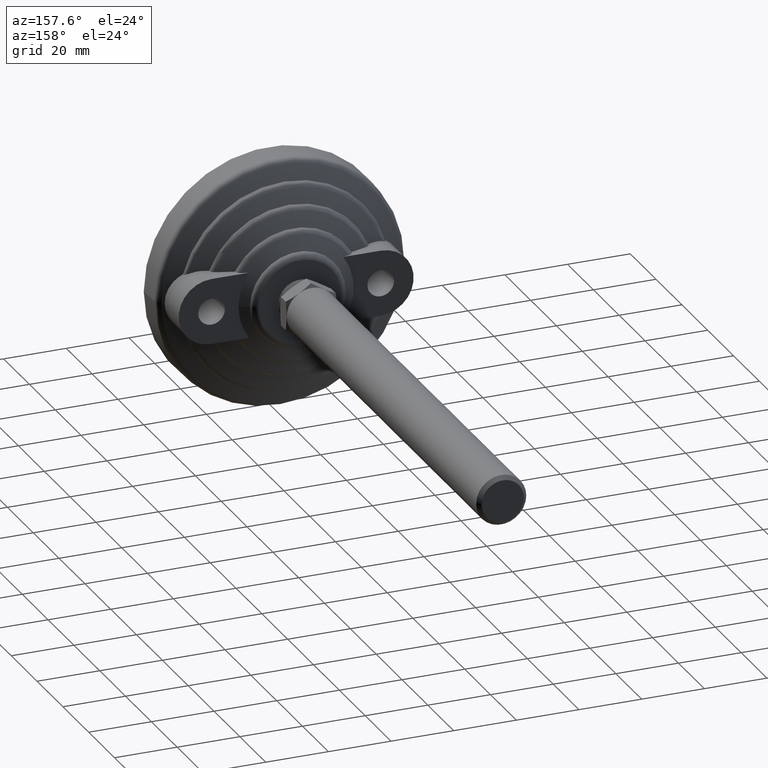
[diagram: clean part render]
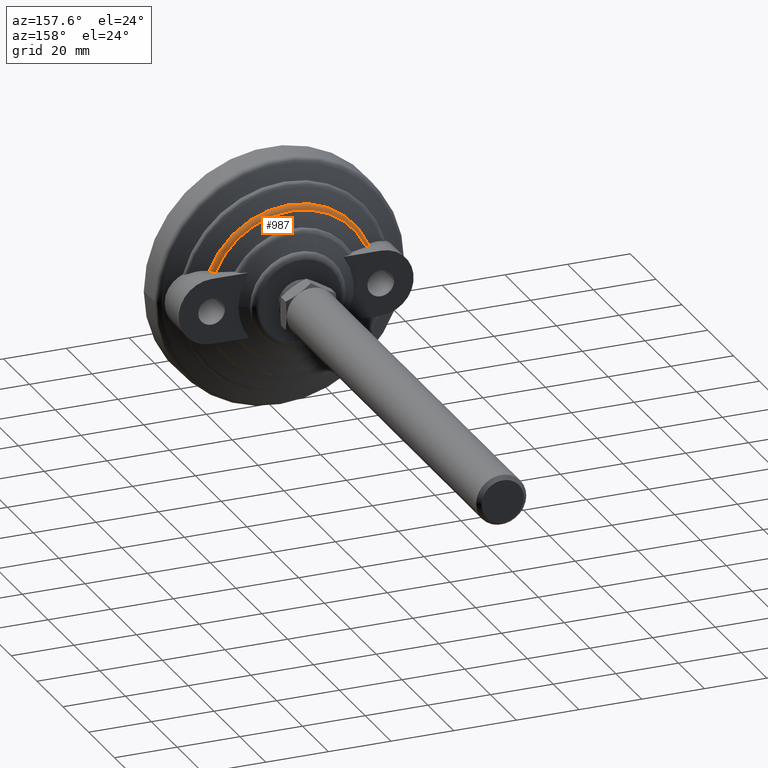
[diagram: same view with one face highlighted and labeled with its STEP entity id]
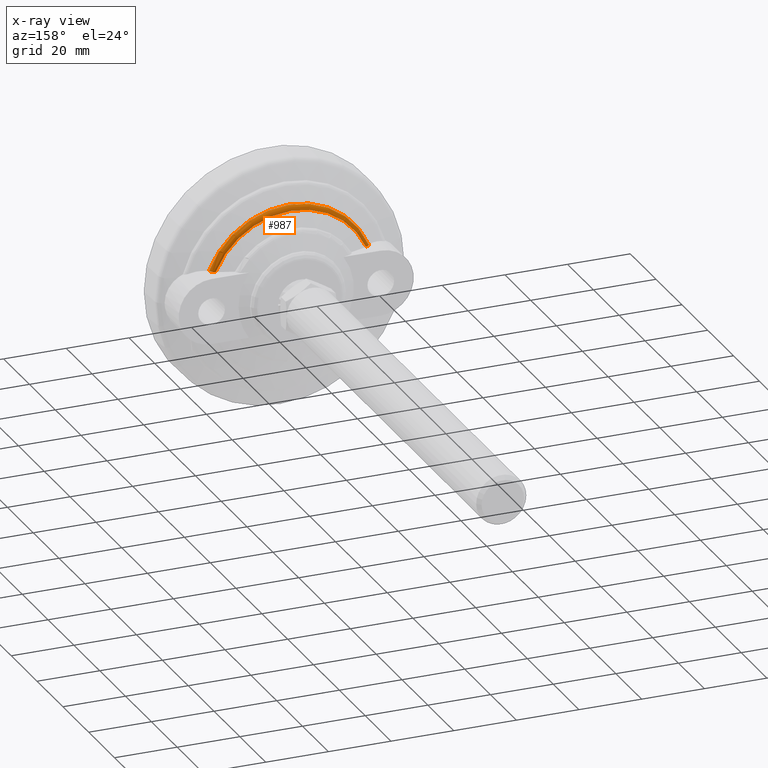
[diagram: x-ray of the same camera — body ghosted, the highlighted face saturated]
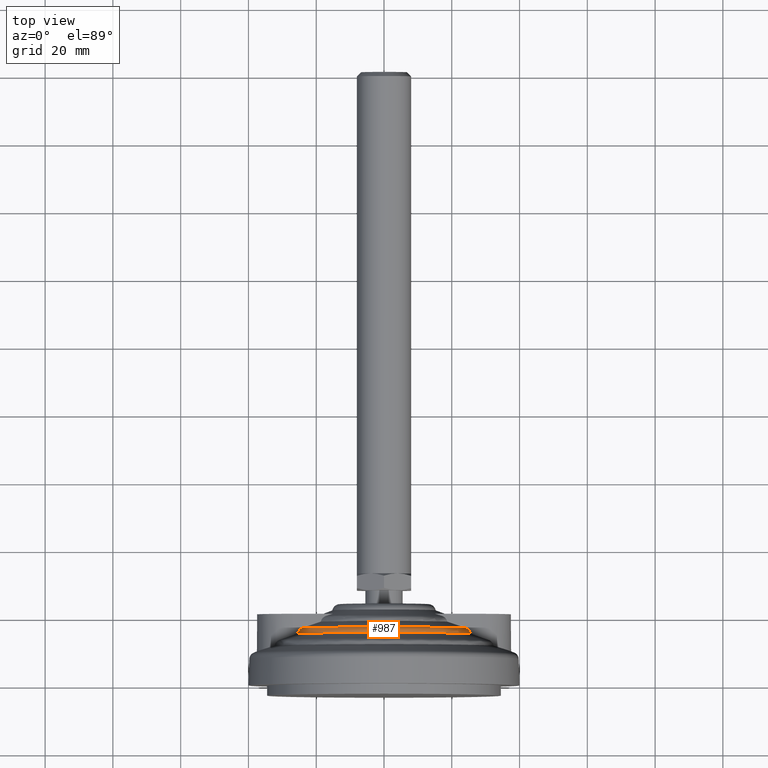
[diagram: same view with one face highlighted and labeled with its STEP entity id]
A machine part, auxiliary view. The second image highlights one B-rep face of the part: STEP entity #987.
The next image is the same camera in x-ray: the body ghosted, the highlighted face saturated — about 0% of this face is hidden behind the body in this view.
A second angle (top view) of the same face is appended — the face is thin or edge-on in the first view.
In plain terms, the highlighted toroidal blend (fillet) surface has major radius 25.4984 mm and minor (blend) radius 2.02 mm.
Its self-contained STEP definition (entity closure, byte-faithful):
#37=TOROIDAL_SURFACE('',#1134,25.4983965238862,2.02000000000133);
#111=B_SPLINE_CURVE_WITH_KNOTS('',3,(#1660,#1661,#1662,#1663,#1664,#1665,
#1666,#1667,#1668,#1669),.UNSPECIFIED.,.F.,.F.,(4,2,2,2,4),(1.01782753286633,
1.02732710549812,1.10729276006222,1.18312901926639,1.23466246531093),
 .UNSPECIFIED.);
#114=B_SPLINE_CURVE_WITH_KNOTS('',3,(#1706,#1707,#1708,#1709,#1710,#1711,
#1712,#1713,#1714,#1715),.UNSPECIFIED.,.F.,.F.,(4,2,2,2,4),(0.0212814232083536,
0.0728148692528918,0.148651128457057,0.228616783021157,0.238116355652946),
 .UNSPECIFIED.);
#170=FACE_OUTER_BOUND('',#231,.T.);
#231=EDGE_LOOP('',(#812,#813,#814,#815));
#358=CIRCLE('',#1133,27.50624303865);
#359=CIRCLE('',#1135,26.213089996915);
#421=VERTEX_POINT('',#1655);
#422=VERTEX_POINT('',#1659);
#427=VERTEX_POINT('',#1701);
#428=VERTEX_POINT('',#1705);
#531=EDGE_CURVE('',#422,#421,#111,.T.);
#537=EDGE_CURVE('',#428,#427,#114,.T.);
#582=EDGE_CURVE('',#421,#428,#358,.T.);
#583=EDGE_CURVE('',#422,#427,#359,.T.);
#812=ORIENTED_EDGE('',*,*,#537,.T.);
#813=ORIENTED_EDGE('',*,*,#583,.F.);
#814=ORIENTED_EDGE('',*,*,#531,.T.);
#815=ORIENTED_EDGE('',*,*,#582,.T.);
#987=ADVANCED_FACE('',(#170),#37,.T.);
#1133=AXIS2_PLACEMENT_3D('',#1876,#1357,#1358);
#1134=AXIS2_PLACEMENT_3D('',#1877,#1359,#1360);
#1135=AXIS2_PLACEMENT_3D('',#1878,#1361,#1362);
#1357=DIRECTION('center_axis',(0.,1.,0.));
#1358=DIRECTION('ref_axis',(-1.,0.,0.));
#1359=DIRECTION('center_axis',(0.,1.,0.));
#1360=DIRECTION('ref_axis',(0.,0.,1.));
#1361=DIRECTION('center_axis',(0.,1.,0.));
#1362=DIRECTION('ref_axis',(-1.,0.,0.));
#1655=CARTESIAN_POINT('',(-25.4232847228929,15.187883375214,10.5));
#1659=CARTESIAN_POINT('',(-24.0182448814722,16.855973555576,10.5));
#1660=CARTESIAN_POINT('Ctrl Pts',(-24.0182448814722,16.855973555576,10.5));
#1661=CARTESIAN_POINT('Ctrl Pts',(-24.0492398296205,16.8452306143917,10.5));
#1662=CARTESIAN_POINT('Ctrl Pts',(-24.0795387046592,16.8339914687044,10.5));
#1663=CARTESIAN_POINT('Ctrl Pts',(-24.356979485335,16.7246285628039,10.5));
#1664=CARTESIAN_POINT('Ctrl Pts',(-24.6279442031493,16.5546573409524,10.5));
#1665=CARTESIAN_POINT('Ctrl Pts',(-25.0040114825102,16.1964854011848,10.5));
#1666=CARTESIAN_POINT('Ctrl Pts',(-25.1794581476383,15.9490249416024,10.5));
#1667=CARTESIAN_POINT('Ctrl Pts',(-25.3482535544129,15.559455781093,10.5));
#1668=CARTESIAN_POINT('Ctrl Pts',(-25.4014496687382,15.3710297364029,10.5));
#1669=CARTESIAN_POINT('Ctrl Pts',(-25.4232847228929,15.187883375214,10.5));
#1701=CARTESIAN_POINT('',(24.0182448814722,16.855973555576,10.5));
#1705=CARTESIAN_POINT('',(25.4232847228929,15.187883375214,10.5));
#1706=CARTESIAN_POINT('Ctrl Pts',(25.4232847228929,15.187883375214,10.5));
#1707=CARTESIAN_POINT('Ctrl Pts',(25.4014496687382,15.3710297364029,10.5));
#1708=CARTESIAN_POINT('Ctrl Pts',(25.3482535544129,15.559455781093,10.5));
#1709=CARTESIAN_POINT('Ctrl Pts',(25.1794581476383,15.9490249416024,10.5));
#1710=CARTESIAN_POINT('Ctrl Pts',(25.0040114825102,16.1964854011848,10.5));
#1711=CARTESIAN_POINT('Ctrl Pts',(24.6279442031493,16.5546573409524,10.5));
#1712=CARTESIAN_POINT('Ctrl Pts',(24.356979485335,16.7246285628039,10.5));
#1713=CARTESIAN_POINT('Ctrl Pts',(24.0795387046592,16.8339914687044,10.5));
#1714=CARTESIAN_POINT('Ctrl Pts',(24.0492398296205,16.8452306143917,10.5));
#1715=CARTESIAN_POINT('Ctrl Pts',(24.0182448814722,16.855973555576,10.5));
#1876=CARTESIAN_POINT('Origin',(0.,15.187883375214,0.));
#1877=CARTESIAN_POINT('Origin',(0.,14.9666315432301,0.));
#1878=CARTESIAN_POINT('Origin',(0.,16.855973555576,0.));